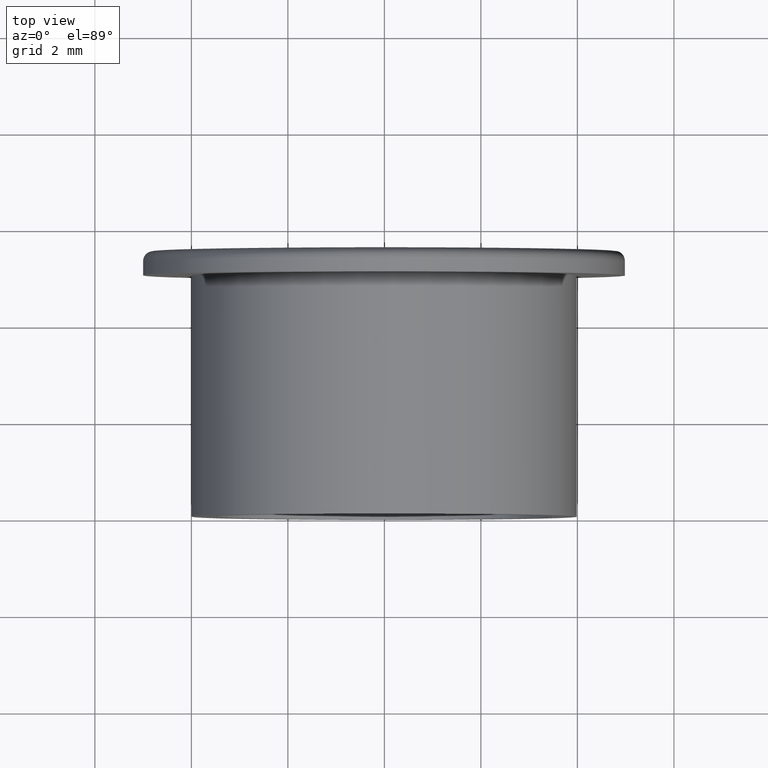
[diagram: clean part render]
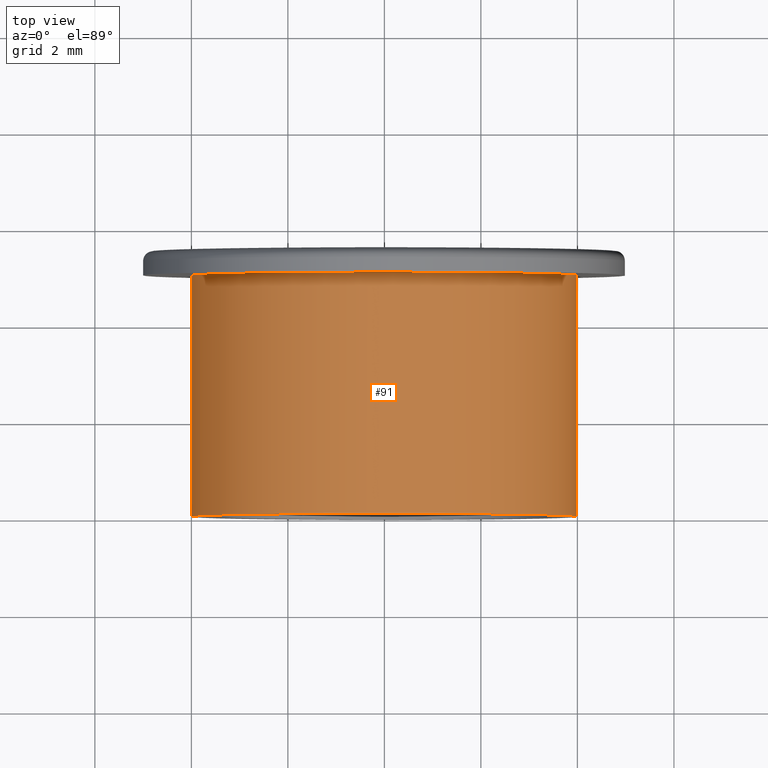
[diagram: same view with one face highlighted and labeled with its STEP entity id]
A machine part, top view. The second image highlights one B-rep face of the part: STEP entity #91.
In plain terms, the highlighted cylindrical surface (bore or boss wall) has radius 4 mm, axis along (0, 1, 0).
Its self-contained STEP definition (entity closure, byte-faithful):
#23=FACE_BOUND('',#43,.T.);
#31=FACE_OUTER_BOUND('',#42,.T.);
#42=EDGE_LOOP('',(#77));
#43=EDGE_LOOP('',(#78));
#53=CIRCLE('',#107,4.);
#54=CIRCLE('',#108,4.);
#60=VERTEX_POINT('',#160);
#61=VERTEX_POINT('',#162);
#67=EDGE_CURVE('',#60,#60,#53,.T.);
#68=EDGE_CURVE('',#61,#61,#54,.T.);
#77=ORIENTED_EDGE('',*,*,#67,.F.);
#78=ORIENTED_EDGE('',*,*,#68,.T.);
#85=CYLINDRICAL_SURFACE('',#106,4.);
#91=ADVANCED_FACE('',(#31,#23),#85,.T.);
#106=AXIS2_PLACEMENT_3D('',#159,#133,#134);
#107=AXIS2_PLACEMENT_3D('',#161,#135,#136);
#108=AXIS2_PLACEMENT_3D('',#163,#137,#138);
#133=DIRECTION('center_axis',(0.,1.,0.));
#134=DIRECTION('ref_axis',(-1.,0.,0.));
#135=DIRECTION('center_axis',(0.,1.,0.));
#136=DIRECTION('ref_axis',(1.,0.,0.));
#137=DIRECTION('center_axis',(0.,1.,0.));
#138=DIRECTION('ref_axis',(1.,0.,0.));
#159=CARTESIAN_POINT('Origin',(0.,2.5,0.));
#160=CARTESIAN_POINT('',(-4.,5.,0.));
#161=CARTESIAN_POINT('Origin',(0.,5.,0.));
#162=CARTESIAN_POINT('',(-4.,0.,0.));
#163=CARTESIAN_POINT('Origin',(0.,0.,0.));